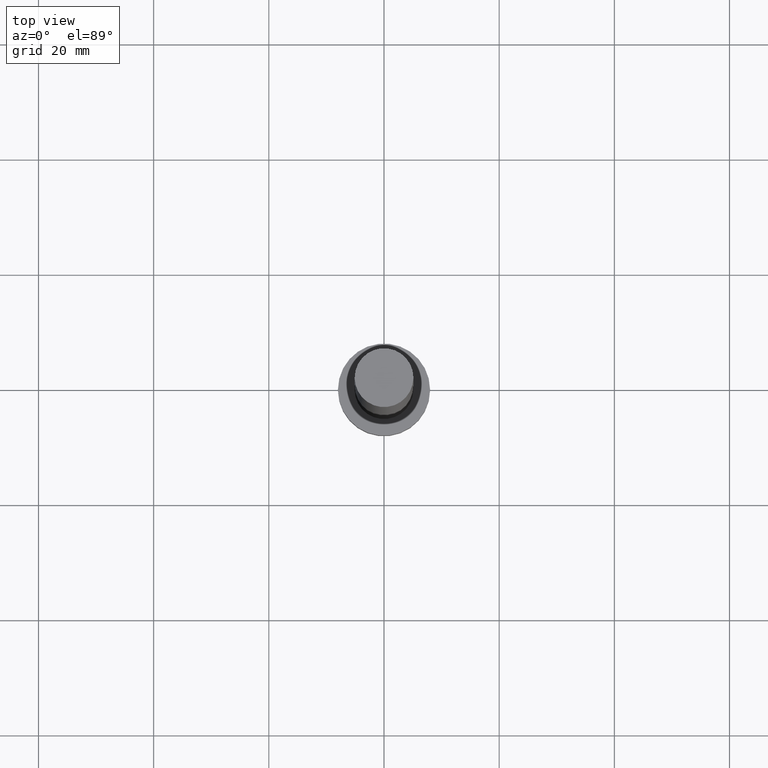
[diagram: clean part render]
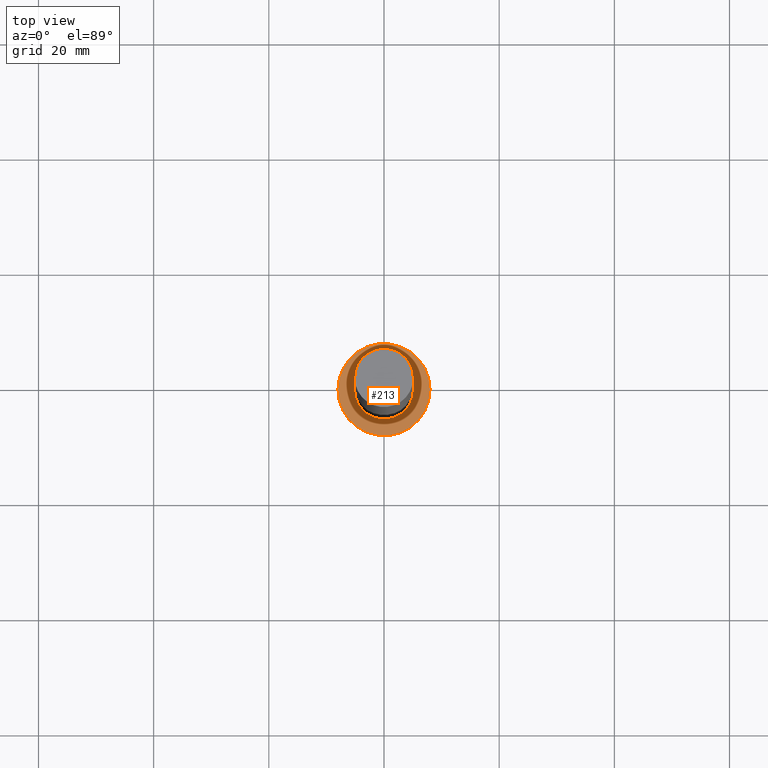
[diagram: same view with one face highlighted and labeled with its STEP entity id]
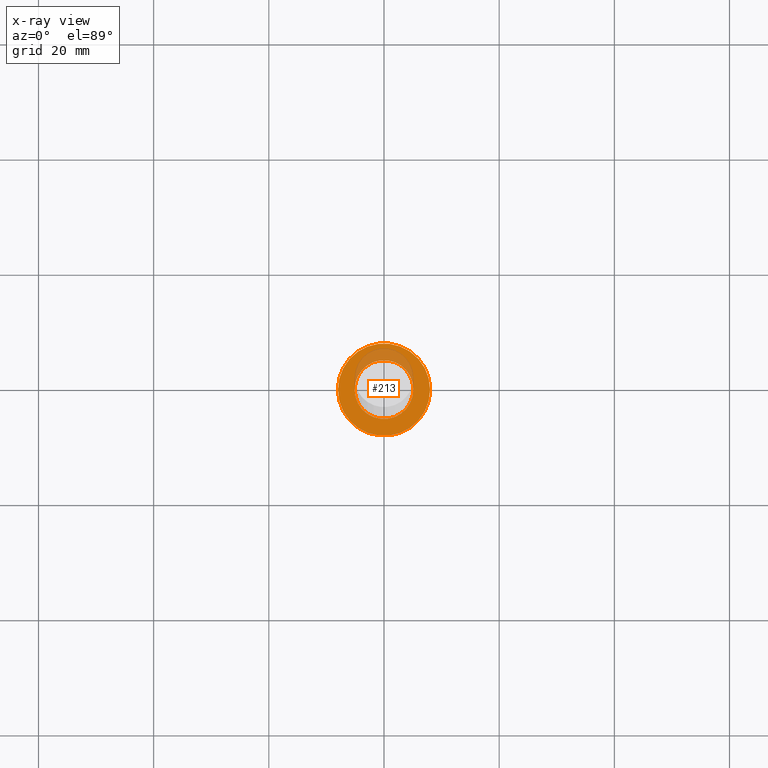
[diagram: x-ray of the same camera — body ghosted, the highlighted face saturated]
A machine part, top view. The second image highlights one B-rep face of the part: STEP entity #213.
The next image is the same camera in x-ray: the body ghosted, the highlighted face saturated — about 18% of this face is hidden behind the body in this view.
In plain terms, the highlighted planar face has unit normal (0, 0, 1).
Its self-contained STEP definition (entity closure, byte-faithful):
#7 = EDGE_CURVE ( 'NONE', #184, #96, #202, .T. ) ;
#13 = EDGE_LOOP ( 'NONE', ( #89, #38 ) ) ;
#14 = CIRCLE ( 'NONE', #186, 5.100000000000001421 ) ;
#30 = ORIENTED_EDGE ( 'NONE', *, *, #76, .F. ) ;
#32 = DIRECTION ( 'NONE',  ( 1.000000000000000000, 0.000000000000000000, 0.000000000000000000 ) ) ;
#36 = DIRECTION ( 'NONE',  ( 1.000000000000000000, 0.000000000000000000, 0.000000000000000000 ) ) ;
#38 = ORIENTED_EDGE ( 'NONE', *, *, #123, .T. ) ;
#41 = CARTESIAN_POINT ( 'NONE',  ( -5.100000000000001421, 0.000000000000000000, 6.500000000000000000 ) ) ;
#61 = DIRECTION ( 'NONE',  ( 1.000000000000000000, 0.000000000000000000, 0.000000000000000000 ) ) ;
#76 = EDGE_CURVE ( 'NONE', #225, #223, #14, .T. ) ;
#81 = DIRECTION ( 'NONE',  ( 1.000000000000000000, 0.000000000000000000, 0.000000000000000000 ) ) ;
#82 = CARTESIAN_POINT ( 'NONE',  ( 0.000000000000000000, 0.000000000000000000, 6.500000000000000000 ) ) ;
#83 = FACE_BOUND ( 'NONE', #125, .T. ) ;
#89 = ORIENTED_EDGE ( 'NONE', *, *, #7, .T. ) ;
#96 = VERTEX_POINT ( 'NONE', #170 ) ;
#115 = AXIS2_PLACEMENT_3D ( 'NONE', #229, #227, #81 ) ;
#117 = PLANE ( 'NONE',  #173 ) ;
#120 = AXIS2_PLACEMENT_3D ( 'NONE', #128, #143, #32 ) ;
#123 = EDGE_CURVE ( 'NONE', #96, #184, #218, .T. ) ;
#125 = EDGE_LOOP ( 'NONE', ( #30, #245 ) ) ;
#128 = CARTESIAN_POINT ( 'NONE',  ( 0.000000000000000000, 0.000000000000000000, 6.500000000000000000 ) ) ;
#129 = CARTESIAN_POINT ( 'NONE',  ( 0.000000000000000000, 0.000000000000000000, 6.500000000000000000 ) ) ;
#143 = DIRECTION ( 'NONE',  ( 0.000000000000000000, 0.000000000000000000, 1.000000000000000000 ) ) ;
#151 = AXIS2_PLACEMENT_3D ( 'NONE', #129, #210, #61 ) ;
#153 = CARTESIAN_POINT ( 'NONE',  ( 5.100000000000001421, 6.245698675651502811E-16, 6.500000000000000000 ) ) ;
#162 = CARTESIAN_POINT ( 'NONE',  ( 0.000000000000000000, 0.000000000000000000, 6.500000000000000000 ) ) ;
#170 = CARTESIAN_POINT ( 'NONE',  ( 8.000000000000000000, 9.797174393178823685E-16, 6.500000000000000000 ) ) ;
#173 = AXIS2_PLACEMENT_3D ( 'NONE', #82, #195, #175 ) ;
#175 = DIRECTION ( 'NONE',  ( 1.000000000000000000, 0.000000000000000000, -0.000000000000000000 ) ) ;
#184 = VERTEX_POINT ( 'NONE', #251 ) ;
#186 = AXIS2_PLACEMENT_3D ( 'NONE', #162, #207, #36 ) ;
#195 = DIRECTION ( 'NONE',  ( 0.000000000000000000, 0.000000000000000000, 1.000000000000000000 ) ) ;
#202 = CIRCLE ( 'NONE', #120, 8.000000000000000000 ) ;
#207 = DIRECTION ( 'NONE',  ( 0.000000000000000000, 0.000000000000000000, 1.000000000000000000 ) ) ;
#210 = DIRECTION ( 'NONE',  ( 0.000000000000000000, 0.000000000000000000, 1.000000000000000000 ) ) ;
#213 = ADVANCED_FACE ( 'NONE', ( #83, #252 ), #117, .T. ) ;
#218 = CIRCLE ( 'NONE', #151, 8.000000000000000000 ) ;
#223 = VERTEX_POINT ( 'NONE', #153 ) ;
#225 = VERTEX_POINT ( 'NONE', #41 ) ;
#227 = DIRECTION ( 'NONE',  ( 0.000000000000000000, 0.000000000000000000, 1.000000000000000000 ) ) ;
#229 = CARTESIAN_POINT ( 'NONE',  ( 0.000000000000000000, 0.000000000000000000, 6.500000000000000000 ) ) ;
#236 = EDGE_CURVE ( 'NONE', #223, #225, #249, .T. ) ;
#245 = ORIENTED_EDGE ( 'NONE', *, *, #236, .F. ) ;
#249 = CIRCLE ( 'NONE', #115, 5.100000000000001421 ) ;
#251 = CARTESIAN_POINT ( 'NONE',  ( -8.000000000000000000, 0.000000000000000000, 6.500000000000000000 ) ) ;
#252 = FACE_OUTER_BOUND ( 'NONE', #13, .T. ) ;